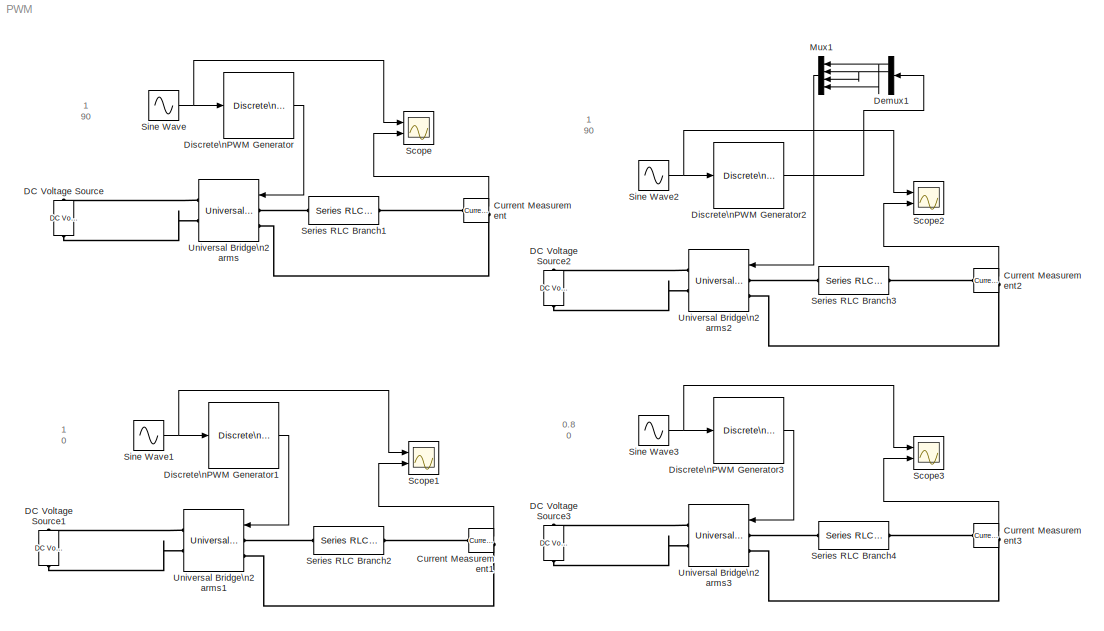
MODEL PWM
KIND model
BLOCK [Reference] Current Measurement  REF=powerlib/Measurements/Current Measurement
  OutputType = Complex
  PSBequivalent = 0
  PhasorSimulation = off
  Ports = [0, 1, 0, 0, 0, 1, 1]
  ShowPortLabels = on
  SourceBlock = powerlib/Measurements/Current Measurement
  SourceType = Current Measurement
BLOCK [Reference] Current Measurement1  REF=powerlib/Measurements/Current Measurement
  OutputType = Complex
  PSBequivalent = 0
  PhasorSimulation = off
  Ports = [0, 1, 0, 0, 0, 1, 1]
  ShowPortLabels = on
  SourceBlock = powerlib/Measurements/Current Measurement
  SourceType = Current Measurement
BLOCK [Reference] Current Measurement2  REF=powerlib/Measurements/Current Measurement
  OutputType = Complex
  PSBequivalent = 0
  PhasorSimulation = off
  Ports = [0, 1, 0, 0, 0, 1, 1]
  ShowPortLabels = on
  SourceBlock = powerlib/Measurements/Current Measurement
  SourceType = Current Measurement
BLOCK [Reference] Current Measurement3  REF=powerlib/Measurements/Current Measurement
  OutputType = Complex
  PSBequivalent = 0
  PhasorSimulation = off
  Ports = [0, 1, 0, 0, 0, 1, 1]
  ShowPortLabels = on
  SourceBlock = powerlib/Measurements/Current Measurement
  SourceType = Current Measurement
BLOCK [Reference] DC Voltage Source  REF=powerlib/Electrical\nSources/DC Voltage Source
  Amplitude = 100
  Measurements = None
  Ports = [0, 0, 0, 0, 0, 1, 1]
  ShowPortLabels = on
  SourceBlock = powerlib/Electrical\nSources/DC Voltage Source
  SourceType = DC Voltage Source
BLOCK [Reference] DC Voltage Source1  REF=powerlib/Electrical\nSources/DC Voltage Source
  Amplitude = 100
  Measurements = None
  Ports = [0, 0, 0, 0, 0, 1, 1]
  ShowPortLabels = on
  SourceBlock = powerlib/Electrical\nSources/DC Voltage Source
  SourceType = DC Voltage Source
BLOCK [Reference] DC Voltage Source2  REF=powerlib/Electrical\nSources/DC Voltage Source
  Amplitude = 100
  Measurements = None
  Ports = [0, 0, 0, 0, 0, 1, 1]
  ShowPortLabels = on
  SourceBlock = powerlib/Electrical\nSources/DC Voltage Source
  SourceType = DC Voltage Source
BLOCK [Reference] DC Voltage Source3  REF=powerlib/Electrical\nSources/DC Voltage Source
  Amplitude = 100
  Measurements = None
  Ports = [0, 0, 0, 0, 0, 1, 1]
  ShowPortLabels = on
  SourceBlock = powerlib/Electrical\nSources/DC Voltage Source
  SourceType = DC Voltage Source
BLOCK [Demux] Demux1
  DisplayOption = bar
  Ports = [1, 4]
BLOCK [Reference] Discrete\nPWM Generator  REF=powerlib_extras/Discrete \nControl Blocks/Discrete\nPWM Generator
  Fc = 20000
  Freq = 50
  GeneratorMode = 2-arm  bridge (4 pulses)
  Internal = off
  Phase = 0
  Ports = [1, 1]
  ShowPortLabels = on
  SourceBlock = powerlib_extras/Discrete \nControl Blocks/Discrete\nPWM Generator
  SourceType = Discrete PWM Generator
  Ts = 5e-6
  mIndex = 0.9
BLOCK [Reference] Discrete\nPWM Generator1  REF=powerlib_extras/Discrete \nControl Blocks/Discrete\nPWM Generator
  Fc = 20000
  Freq = 50
  GeneratorMode = 2-arm  bridge (4 pulses)
  Internal = off
  Phase = 0
  Ports = [1, 1]
  ShowPortLabels = on
  SourceBlock = powerlib_extras/Discrete \nControl Blocks/Discrete\nPWM Generator
  SourceType = Discrete PWM Generator
  Ts = 5e-6
  mIndex = 0.9
BLOCK [Reference] Discrete\nPWM Generator2  REF=powerlib_extras/Discrete \nControl Blocks/Discrete\nPWM Generator
  Fc = 20000
  Freq = 50
  GeneratorMode = 2-arm  bridge (4 pulses)
  Internal = off
  Phase = 0
  Ports = [1, 1]
  ShowPortLabels = on
  SourceBlock = powerlib_extras/Discrete \nControl Blocks/Discrete\nPWM Generator
  SourceType = Discrete PWM Generator
  Ts = 5e-6
  mIndex = 0.9
BLOCK [Reference] Discrete\nPWM Generator3  REF=powerlib_extras/Discrete \nControl Blocks/Discrete\nPWM Generator
  Fc = 20000
  Freq = 50
  GeneratorMode = 2-arm  bridge (4 pulses)
  Internal = off
  Phase = 0
  Ports = [1, 1]
  ShowPortLabels = on
  SourceBlock = powerlib_extras/Discrete \nControl Blocks/Discrete\nPWM Generator
  SourceType = Discrete PWM Generator
  Ts = 5e-6
  mIndex = 0.9
BLOCK [Mux] Mux1
  DisplayOption = bar
  Ports = [4, 1]
BLOCK [Scope] Scope
  DataFormat = StructureWithTime
  MaxDataPoints = 500000
  NumInputPorts = 2
  Ports = [2]
  YMax = 5~5
  YMin = -5~-5
BLOCK [Scope] Scope1
  DataFormat = StructureWithTime
  MaxDataPoints = 500000
  NumInputPorts = 2
  Ports = [2]
  SaveName = ScopeData1
  YMax = 5~5
  YMin = -5~-5
BLOCK [Scope] Scope2
  DataFormat = StructureWithTime
  MaxDataPoints = 500000
  NumInputPorts = 2
  Ports = [2]
  SaveName = ScopeData2
  YMax = 5~5
  YMin = -5~-5
BLOCK [Scope] Scope3
  DataFormat = StructureWithTime
  MaxDataPoints = 500000
  NumInputPorts = 2
  Ports = [2]
  SaveName = ScopeData3
  YMax = 5~5
  YMin = -5~-5
BLOCK [Reference] Series RLC Branch1  REF=powerlib/Elements/Series RLC Branch
  Capacitance = inf
  Inductance = 0.1
  LConnTagsString = __new0
  LeftPortType = p1
  Measurements = Branch current
  PhysicalDomain = powersysdomain
  Ports = [0, 0, 0, 0, 0, 1, 1]
  RConnTagsString = __new0
  Resistance = 10
  RightPortType = p1
  SourceBlock = powerlib/Elements/Series RLC Branch
  SourceType = Series RLC Branch
  SubClassName = unknown
BLOCK [Reference] Series RLC Branch2  REF=powerlib/Elements/Series RLC Branch
  Capacitance = inf
  Inductance = 0.1
  LConnTagsString = __new0
  LeftPortType = p1
  Measurements = Branch current
  PhysicalDomain = powersysdomain
  Ports = [0, 0, 0, 0, 0, 1, 1]
  RConnTagsString = __new0
  Resistance = 10
  RightPortType = p1
  SourceBlock = powerlib/Elements/Series RLC Branch
  SourceType = Series RLC Branch
  SubClassName = unknown
BLOCK [Reference] Series RLC Branch3  REF=powerlib/Elements/Series RLC Branch
  Capacitance = inf
  Inductance = 0.1
  LConnTagsString = __new0
  LeftPortType = p1
  Measurements = Branch current
  PhysicalDomain = powersysdomain
  Ports = [0, 0, 0, 0, 0, 1, 1]
  RConnTagsString = __new0
  Resistance = 10
  RightPortType = p1
  SourceBlock = powerlib/Elements/Series RLC Branch
  SourceType = Series RLC Branch
  SubClassName = unknown
BLOCK [Reference] Series RLC Branch4  REF=powerlib/Elements/Series RLC Branch
  Capacitance = inf
  Inductance = 0.1
  LConnTagsString = __new0
  LeftPortType = p1
  Measurements = Branch current
  PhysicalDomain = powersysdomain
  Ports = [0, 0, 0, 0, 0, 1, 1]
  RConnTagsString = __new0
  Resistance = 10
  RightPortType = p1
  SourceBlock = powerlib/Elements/Series RLC Branch
  SourceType = Series RLC Branch
  SubClassName = unknown
BLOCK [Sin] Sine Wave
  Frequency = 100*pi
  Phase = pi/2
  Ports = [0, 1]
  SampleTime = 0
  SineType = Time based
BLOCK [Sin] Sine Wave1
  Frequency = 100*pi
  Ports = [0, 1]
  SampleTime = 0
  SineType = Time based
BLOCK [Sin] Sine Wave2
  Frequency = 100*pi
  Phase = pi/2
  Ports = [0, 1]
  SampleTime = 0
  SineType = Time based
BLOCK [Sin] Sine Wave3
  Amplitude = 0.8
  Frequency = 100*pi
  Ports = [0, 1]
  SampleTime = 0
  SineType = Time based
BLOCK [Reference] Universal Bridge\n2 arms  REF=powerlib/Power\nElectronics/Universal Bridge
  Arms = 2
  AttributesFormatString = \\n
  Device = IGBT / Diodes
  ForwardVoltage = .8
  ForwardVoltages = [  1  1  ]
  GTOparameters = [ 10e-6 , 20e-6 ]
  IGBTparameters = [ 1e-6 , 2e-6 ]
  Lon = 0
  Measurements = None
  Ports = [1, 0, 0, 0, 0, 2, 2]
  Ron = 1e-4
  ShowPortLabels = on
  SnubberCapacitance = inf
  SnubberResistance = 10000
  SourceBlock = powerlib/Power\nElectronics/Universal Bridge
  SourceType = Universal Bridge
BLOCK [Reference] Universal Bridge\n2 arms1  REF=powerlib/Power\nElectronics/Universal Bridge
  Arms = 2
  AttributesFormatString = \\n
  Device = IGBT / Diodes
  ForwardVoltage = .8
  ForwardVoltages = [  1  1  ]
  GTOparameters = [ 10e-6 , 20e-6 ]
  IGBTparameters = [ 1e-6 , 2e-6 ]
  Lon = 0
  Measurements = None
  Ports = [1, 0, 0, 0, 0, 2, 2]
  Ron = 1e-4
  ShowPortLabels = on
  SnubberCapacitance = inf
  SnubberResistance = 10000
  SourceBlock = powerlib/Power\nElectronics/Universal Bridge
  SourceType = Universal Bridge
BLOCK [Reference] Universal Bridge\n2 arms2  REF=powerlib/Power\nElectronics/Universal Bridge
  Arms = 2
  AttributesFormatString = \\n
  Device = IGBT / Diodes
  ForwardVoltage = .8
  ForwardVoltages = [  1  1  ]
  GTOparameters = [ 10e-6 , 20e-6 ]
  IGBTparameters = [ 1e-6 , 2e-6 ]
  Lon = 0
  Measurements = None
  Ports = [1, 0, 0, 0, 0, 2, 2]
  Ron = 1e-4
  ShowPortLabels = on
  SnubberCapacitance = inf
  SnubberResistance = 10000
  SourceBlock = powerlib/Power\nElectronics/Universal Bridge
  SourceType = Universal Bridge
BLOCK [Reference] Universal Bridge\n2 arms3  REF=powerlib/Power\nElectronics/Universal Bridge
  Arms = 2
  AttributesFormatString = \\n
  Device = IGBT / Diodes
  ForwardVoltage = .8
  ForwardVoltages = [  1  1  ]
  GTOparameters = [ 10e-6 , 20e-6 ]
  IGBTparameters = [ 1e-6 , 2e-6 ]
  Lon = 0
  Measurements = None
  Ports = [1, 0, 0, 0, 0, 2, 2]
  Ron = 1e-4
  ShowPortLabels = on
  SnubberCapacitance = inf
  SnubberResistance = 10000
  SourceBlock = powerlib/Power\nElectronics/Universal Bridge
  SourceType = Universal Bridge
ANNOTATION (root): 0.8\n0
ANNOTATION (root): 1\n0
ANNOTATION (root): 1\n90
LINE Current Measurement1:1 -> Scope1:2
LINE Current Measurement2:1 -> Scope2:2
LINE Current Measurement3:1 -> Scope3:2
LINE Current Measurement:1 -> Scope:2
NET Demux1:1 -> Mux1:1, Mux1:4
NET Demux1:2 -> Mux1:2, Mux1:3
LINE Discrete\nPWM Generator1:1 -> Universal Bridge\n2 arms1:1
LINE Discrete\nPWM Generator2:1 -> Demux1:1
LINE Discrete\nPWM Generator3:1 -> Universal Bridge\n2 arms3:1
LINE Discrete\nPWM Generator:1 -> Universal Bridge\n2 arms:1
LINE Mux1:1 -> Universal Bridge\n2 arms2:1
NET Sine Wave1:1 -> Discrete\nPWM Generator1:1, Scope1:1
NET Sine Wave2:1 -> Discrete\nPWM Generator2:1, Scope2:1
NET Sine Wave3:1 -> Discrete\nPWM Generator3:1, Scope3:1
NET Sine Wave:1 -> Discrete\nPWM Generator:1, Scope:1
PLINE Current Measurement1:LConn1 -- Series RLC Branch2:RConn1
PLINE Current Measurement1:RConn1 -- Universal Bridge\n2 arms1:LConn2
PLINE Current Measurement2:LConn1 -- Series RLC Branch3:RConn1
PLINE Current Measurement2:RConn1 -- Universal Bridge\n2 arms2:LConn2
PLINE Current Measurement3:LConn1 -- Series RLC Branch4:RConn1
PLINE Current Measurement3:RConn1 -- Universal Bridge\n2 arms3:LConn2
PLINE Current Measurement:LConn1 -- Series RLC Branch1:RConn1
PLINE Current Measurement:RConn1 -- Universal Bridge\n2 arms:LConn2
PLINE DC Voltage Source1:LConn1 -- Universal Bridge\n2 arms1:RConn2
PLINE DC Voltage Source1:RConn1 -- Universal Bridge\n2 arms1:RConn1
PLINE DC Voltage Source2:LConn1 -- Universal Bridge\n2 arms2:RConn2
PLINE DC Voltage Source2:RConn1 -- Universal Bridge\n2 arms2:RConn1
PLINE DC Voltage Source3:LConn1 -- Universal Bridge\n2 arms3:RConn2
PLINE DC Voltage Source3:RConn1 -- Universal Bridge\n2 arms3:RConn1
PLINE DC Voltage Source:LConn1 -- Universal Bridge\n2 arms:RConn2
PLINE DC Voltage Source:RConn1 -- Universal Bridge\n2 arms:RConn1
PLINE Series RLC Branch1:LConn1 -- Universal Bridge\n2 arms:LConn1
PLINE Series RLC Branch2:LConn1 -- Universal Bridge\n2 arms1:LConn1
PLINE Series RLC Branch3:LConn1 -- Universal Bridge\n2 arms2:LConn1
PLINE Series RLC Branch4:LConn1 -- Universal Bridge\n2 arms3:LConn1
note: NET lines group one-source signal fan-out (src -> all destinations, sorted); 1:1 wires keep LINE
